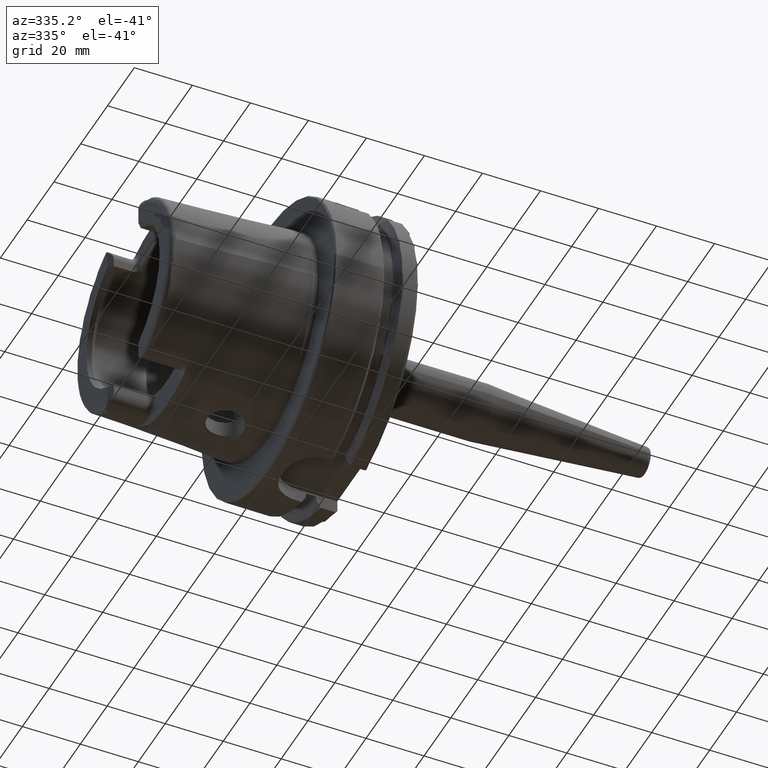
[diagram: clean part render]
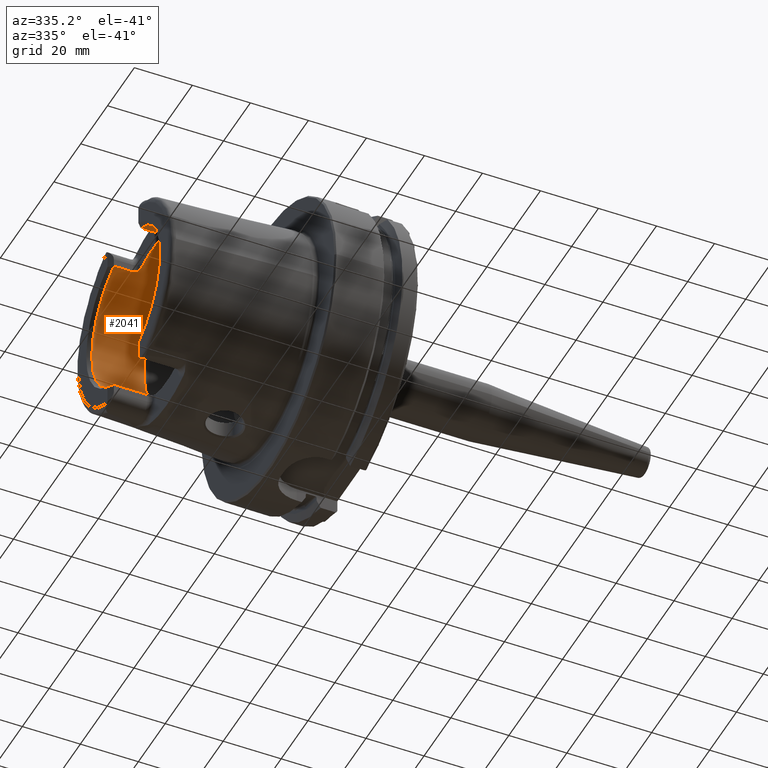
[diagram: same view with one face highlighted and labeled with its STEP entity id]
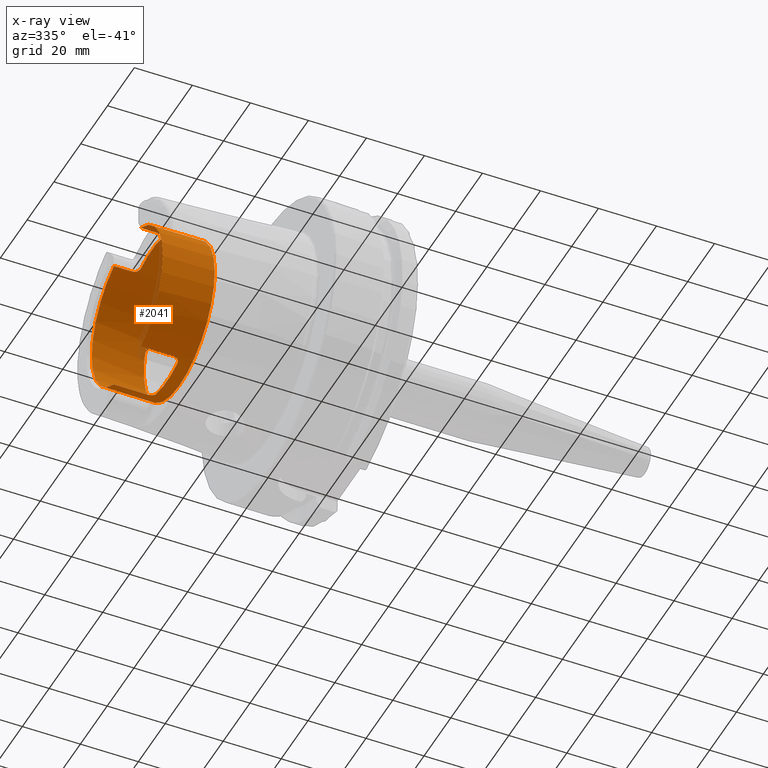
[diagram: x-ray of the same camera — body ghosted, the highlighted face saturated]
A machine part, auxiliary view. The second image highlights one B-rep face of the part: STEP entity #2041.
The next image is the same camera in x-ray: the body ghosted, the highlighted face saturated — about 3% of this face is hidden behind the body in this view.
In plain terms, the highlighted cylindrical surface (bore or boss wall) has radius 26.5 mm, axis along (-1, 0, 0).
Its self-contained STEP definition (entity closure, byte-faithful):
#80=B_SPLINE_CURVE_WITH_KNOTS('',3,(#4286,#4287,#4288,#4289,#4290,#4291,
#4292,#4293,#4294,#4295),.UNSPECIFIED.,.F.,.F.,(4,2,2,2,4),(0.307245873696209,
0.387318131676521,0.467390389656833,0.542677307505841,0.617964225354849),
 .UNSPECIFIED.);
#81=B_SPLINE_CURVE_WITH_KNOTS('',3,(#4304,#4305,#4306,#4307,#4308,#4309,
#4310,#4311,#4312,#4313),.UNSPECIFIED.,.F.,.F.,(4,2,2,2,4),(0.61796422535485,
0.694491364966707,0.771018504578565,0.849854597041439,0.928690689504313),
 .UNSPECIFIED.);
#82=B_SPLINE_CURVE_WITH_KNOTS('',3,(#4326,#4327,#4328,#4329,#4330,#4331,
#4332,#4333,#4334,#4335),.UNSPECIFIED.,.F.,.F.,(4,2,2,2,4),(0.617964225354849,
0.693251143203857,0.768538061052865,0.848610319033177,0.928682577013489),
 .UNSPECIFIED.);
#83=B_SPLINE_CURVE_WITH_KNOTS('',3,(#4355,#4356,#4357,#4358,#4359,#4360,
#4361,#4362,#4363,#4364),.UNSPECIFIED.,.F.,.F.,(4,2,2,2,4),(0.307245873696209,
0.387318131676521,0.467390389656833,0.542677307505841,0.617964225354849),
 .UNSPECIFIED.);
#129=LINE('',#3070,#233);
#137=LINE('',#3145,#241);
#141=LINE('',#3209,#245);
#200=LINE('',#4351,#304);
#204=LINE('',#4399,#308);
#233=VECTOR('',#2460,10.);
#241=VECTOR('',#2506,10.);
#245=VECTOR('',#2528,10.);
#304=VECTOR('',#2807,10.);
#308=VECTOR('',#2851,26.5);
#346=CYLINDRICAL_SURFACE('',#2291,26.5);
#491=FACE_OUTER_BOUND('',#614,.T.);
#614=EDGE_LOOP('',(#1801,#1802,#1803,#1804,#1805,#1806,#1807,#1808,#1809,
#1810,#1811,#1812,#1813,#1814,#1815,#1816,#1817));
#674=CIRCLE('',#2145,26.5);
#675=CIRCLE('',#2146,26.5);
#738=CIRCLE('',#2270,26.5);
#743=CIRCLE('',#2282,26.5);
#744=CIRCLE('',#2285,26.5);
#747=CIRCLE('',#2292,26.5);
#748=CIRCLE('',#2293,26.5);
#810=VERTEX_POINT('',#3060);
#813=VERTEX_POINT('',#3068);
#822=VERTEX_POINT('',#3117);
#824=VERTEX_POINT('',#3123);
#825=VERTEX_POINT('',#3125);
#831=VERTEX_POINT('',#3143);
#837=VERTEX_POINT('',#3176);
#842=VERTEX_POINT('',#3208);
#949=VERTEX_POINT('',#4284);
#951=VERTEX_POINT('',#4303);
#955=VERTEX_POINT('',#4324);
#956=VERTEX_POINT('',#4325);
#958=VERTEX_POINT('',#4345);
#960=VERTEX_POINT('',#4396);
#961=VERTEX_POINT('',#4397);
#1029=EDGE_CURVE('',#810,#813,#129,.T.);
#1042=EDGE_CURVE('',#824,#825,#674,.T.);
#1043=EDGE_CURVE('',#825,#822,#675,.T.);
#1052=EDGE_CURVE('',#824,#831,#137,.T.);
#1065=EDGE_CURVE('',#842,#837,#141,.T.);
#1223=EDGE_CURVE('',#949,#831,#80,.T.);
#1227=EDGE_CURVE('',#842,#951,#81,.T.);
#1233=EDGE_CURVE('',#955,#956,#82,.T.);
#1239=EDGE_CURVE('',#958,#956,#738,.T.);
#1242=EDGE_CURVE('',#955,#822,#200,.T.);
#1245=EDGE_CURVE('',#958,#813,#83,.T.);
#1249=EDGE_CURVE('',#949,#951,#743,.T.);
#1251=EDGE_CURVE('',#810,#837,#744,.T.);
#1255=EDGE_CURVE('',#960,#961,#747,.T.);
#1256=EDGE_CURVE('',#960,#825,#204,.T.);
#1257=EDGE_CURVE('',#961,#960,#748,.T.);
#1801=ORIENTED_EDGE('',*,*,#1255,.F.);
#1802=ORIENTED_EDGE('',*,*,#1256,.T.);
#1803=ORIENTED_EDGE('',*,*,#1042,.F.);
#1804=ORIENTED_EDGE('',*,*,#1052,.T.);
#1805=ORIENTED_EDGE('',*,*,#1223,.F.);
#1806=ORIENTED_EDGE('',*,*,#1249,.T.);
#1807=ORIENTED_EDGE('',*,*,#1227,.F.);
#1808=ORIENTED_EDGE('',*,*,#1065,.T.);
#1809=ORIENTED_EDGE('',*,*,#1251,.F.);
#1810=ORIENTED_EDGE('',*,*,#1029,.T.);
#1811=ORIENTED_EDGE('',*,*,#1245,.F.);
#1812=ORIENTED_EDGE('',*,*,#1239,.T.);
#1813=ORIENTED_EDGE('',*,*,#1233,.F.);
#1814=ORIENTED_EDGE('',*,*,#1242,.T.);
#1815=ORIENTED_EDGE('',*,*,#1043,.F.);
#1816=ORIENTED_EDGE('',*,*,#1256,.F.);
#1817=ORIENTED_EDGE('',*,*,#1257,.F.);
#2041=ADVANCED_FACE('',(#491),#346,.F.);
#2145=AXIS2_PLACEMENT_3D('',#3126,#2484,#2485);
#2146=AXIS2_PLACEMENT_3D('',#3127,#2486,#2487);
#2270=AXIS2_PLACEMENT_3D('',#4346,#2800,#2801);
#2282=AXIS2_PLACEMENT_3D('',#4373,#2828,#2829);
#2285=AXIS2_PLACEMENT_3D('',#4388,#2834,#2835);
#2291=AXIS2_PLACEMENT_3D('',#4395,#2847,#2848);
#2292=AXIS2_PLACEMENT_3D('',#4398,#2849,#2850);
#2293=AXIS2_PLACEMENT_3D('',#4400,#2852,#2853);
#2460=DIRECTION('',(1.,0.,0.));
#2484=DIRECTION('center_axis',(1.,0.,0.));
#2485=DIRECTION('ref_axis',(0.,-1.,0.));
#2486=DIRECTION('center_axis',(1.,0.,0.));
#2487=DIRECTION('ref_axis',(0.,-1.,0.));
#2506=DIRECTION('',(1.,0.,0.));
#2528=DIRECTION('',(-1.,0.,0.));
#2800=DIRECTION('center_axis',(-1.,0.,0.));
#2801=DIRECTION('ref_axis',(0.,1.,0.));
#2807=DIRECTION('',(-1.,0.,0.));
#2828=DIRECTION('center_axis',(-1.,0.,0.));
#2829=DIRECTION('ref_axis',(0.,1.,0.));
#2834=DIRECTION('center_axis',(1.,0.,0.));
#2835=DIRECTION('ref_axis',(0.,-1.,0.));
#2847=DIRECTION('center_axis',(-1.,0.,0.));
#2848=DIRECTION('ref_axis',(0.,1.,0.));
#2849=DIRECTION('center_axis',(-1.,0.,0.));
#2850=DIRECTION('ref_axis',(0.,0.,1.));
#2851=DIRECTION('',(-1.,0.,0.));
#2852=DIRECTION('center_axis',(-1.,0.,0.));
#2853=DIRECTION('ref_axis',(0.,0.,1.));
#3060=CARTESIAN_POINT('',(-48.5,10.01,-24.5367051577835));
#3068=CARTESIAN_POINT('',(-37.,10.01,-24.5367051577835));
#3070=CARTESIAN_POINT('',(-40.2903629710818,10.01,-24.5367051577835));
#3117=CARTESIAN_POINT('',(-48.5,-10.01,-24.5367051577835));
#3123=CARTESIAN_POINT('',(-48.5,-10.01,24.5367051577835));
#3125=CARTESIAN_POINT('',(-48.5,-26.5,3.24531401774049E-15));
#3126=CARTESIAN_POINT('Origin',(-48.5,0.,0.));
#3127=CARTESIAN_POINT('Origin',(-48.5,0.,0.));
#3143=CARTESIAN_POINT('',(-42.,-10.01,24.5367051577835));
#3145=CARTESIAN_POINT('',(-40.2903629710818,-10.01,24.5367051577835));
#3176=CARTESIAN_POINT('',(-48.5,10.01,24.5367051577835));
#3208=CARTESIAN_POINT('',(-42.,10.01,24.5367051577835));
#3209=CARTESIAN_POINT('',(-40.2903629710818,10.01,24.5367051577835));
#4284=CARTESIAN_POINT('',(-40.,-8.01,25.2604414054862));
#4286=CARTESIAN_POINT('Ctrl Pts',(-40.,-8.01,25.2604414054862));
#4287=CARTESIAN_POINT('Ctrl Pts',(-40.,-8.26442271458071,25.1797648285777));
#4288=CARTESIAN_POINT('Ctrl Pts',(-40.0513332778729,-8.53503831367686,25.0892968127514));
#4289=CARTESIAN_POINT('Ctrl Pts',(-40.2604388709541,-9.03317850506395,24.9142806373643));
#4290=CARTESIAN_POINT('Ctrl Pts',(-40.4182028025644,-9.2607746884821,24.8299262887475));
#4291=CARTESIAN_POINT('Ctrl Pts',(-40.7762398849713,-9.61038047170956,24.6966285655713));
#4292=CARTESIAN_POINT('Ctrl Pts',(-40.996584045901,-9.75993653512726,24.6374761492843));
#4293=CARTESIAN_POINT('Ctrl Pts',(-41.4829332858843,-9.95981108540838,24.557356442995));
#4294=CARTESIAN_POINT('Ctrl Pts',(-41.74904360717,-10.01,24.5367051577835));
#4295=CARTESIAN_POINT('Ctrl Pts',(-42.,-10.01,24.5367051577835));
#4303=CARTESIAN_POINT('',(-40.,8.01,25.2604414054862));
#4304=CARTESIAN_POINT('Ctrl Pts',(-42.,10.01,24.5367051577835));
#4305=CARTESIAN_POINT('Ctrl Pts',(-41.7449095346271,10.01,24.5367051577835));
#4306=CARTESIAN_POINT('Ctrl Pts',(-41.4747619014646,9.95816285425487,24.5580391842641));
#4307=CARTESIAN_POINT('Ctrl Pts',(-40.9823460284033,9.75229566196282,24.640515927451));
#4308=CARTESIAN_POINT('Ctrl Pts',(-40.7599680829949,9.59839520774108,24.7013267120605));
#4309=CARTESIAN_POINT('Ctrl Pts',(-40.4063494382929,9.24477656303909,24.8358806096526));
#4310=CARTESIAN_POINT('Ctrl Pts',(-40.2529543645221,9.01930384320105,24.9192727261742));
#4311=CARTESIAN_POINT('Ctrl Pts',(-40.049776768453,8.52719637786957,25.0919293188873));
#4312=CARTESIAN_POINT('Ctrl Pts',(-40.,8.26049490494288,25.1810103236462));
#4313=CARTESIAN_POINT('Ctrl Pts',(-40.,8.01,25.2604414054862));
#4324=CARTESIAN_POINT('',(-37.,-10.01,-24.5367051577835));
#4325=CARTESIAN_POINT('',(-35.,-8.01,-25.2604414054862));
#4326=CARTESIAN_POINT('Ctrl Pts',(-37.,-10.01,-24.5367051577835));
#4327=CARTESIAN_POINT('Ctrl Pts',(-36.74904360717,-10.01,-24.5367051577835));
#4328=CARTESIAN_POINT('Ctrl Pts',(-36.4829332858843,-9.95981108540838,-24.557356442995));
#4329=CARTESIAN_POINT('Ctrl Pts',(-35.9965840459011,-9.75993653512726,-24.6374761492843));
#4330=CARTESIAN_POINT('Ctrl Pts',(-35.7762398849713,-9.61038047170956,-24.6966285655713));
#4331=CARTESIAN_POINT('Ctrl Pts',(-35.4182028025644,-9.2607746884821,-24.8299262887475));
#4332=CARTESIAN_POINT('Ctrl Pts',(-35.2604388709541,-9.03317850506395,-24.9142806373643));
#4333=CARTESIAN_POINT('Ctrl Pts',(-35.0513332778729,-8.53503831367686,-25.0892968127514));
#4334=CARTESIAN_POINT('Ctrl Pts',(-35.,-8.26442271458071,-25.1797648285777));
#4335=CARTESIAN_POINT('Ctrl Pts',(-35.,-8.01,-25.2604414054862));
#4345=CARTESIAN_POINT('',(-35.,8.01,-25.2604414054862));
#4346=CARTESIAN_POINT('Origin',(-35.,0.,0.));
#4351=CARTESIAN_POINT('',(-40.2903629710818,-10.01,-24.5367051577835));
#4355=CARTESIAN_POINT('Ctrl Pts',(-35.,8.01,-25.2604414054862));
#4356=CARTESIAN_POINT('Ctrl Pts',(-35.,8.26442271458071,-25.1797648285777));
#4357=CARTESIAN_POINT('Ctrl Pts',(-35.0513332778729,8.53503831367686,-25.0892968127514));
#4358=CARTESIAN_POINT('Ctrl Pts',(-35.2604388709541,9.03317850506395,-24.9142806373643));
#4359=CARTESIAN_POINT('Ctrl Pts',(-35.4182028025644,9.2607746884821,-24.8299262887475));
#4360=CARTESIAN_POINT('Ctrl Pts',(-35.7762398849713,9.61038047170956,-24.6966285655713));
#4361=CARTESIAN_POINT('Ctrl Pts',(-35.9965840459011,9.75993653512726,-24.6374761492843));
#4362=CARTESIAN_POINT('Ctrl Pts',(-36.4829332858843,9.95981108540838,-24.557356442995));
#4363=CARTESIAN_POINT('Ctrl Pts',(-36.74904360717,10.01,-24.5367051577835));
#4364=CARTESIAN_POINT('Ctrl Pts',(-37.,10.01,-24.5367051577835));
#4373=CARTESIAN_POINT('Origin',(-40.,0.,0.));
#4388=CARTESIAN_POINT('Origin',(-48.5,0.,0.));
#4395=CARTESIAN_POINT('Origin',(-40.2903629710818,0.,0.));
#4396=CARTESIAN_POINT('',(-30.5807259421637,-26.5,3.24531401774049E-15));
#4397=CARTESIAN_POINT('',(-30.5807259421637,-3.24531401774049E-15,-26.5));
#4398=CARTESIAN_POINT('Origin',(-30.5807259421637,0.,0.));
#4399=CARTESIAN_POINT('',(-40.2903629710818,-26.5,3.24531401774049E-15));
#4400=CARTESIAN_POINT('Origin',(-30.5807259421637,0.,0.));